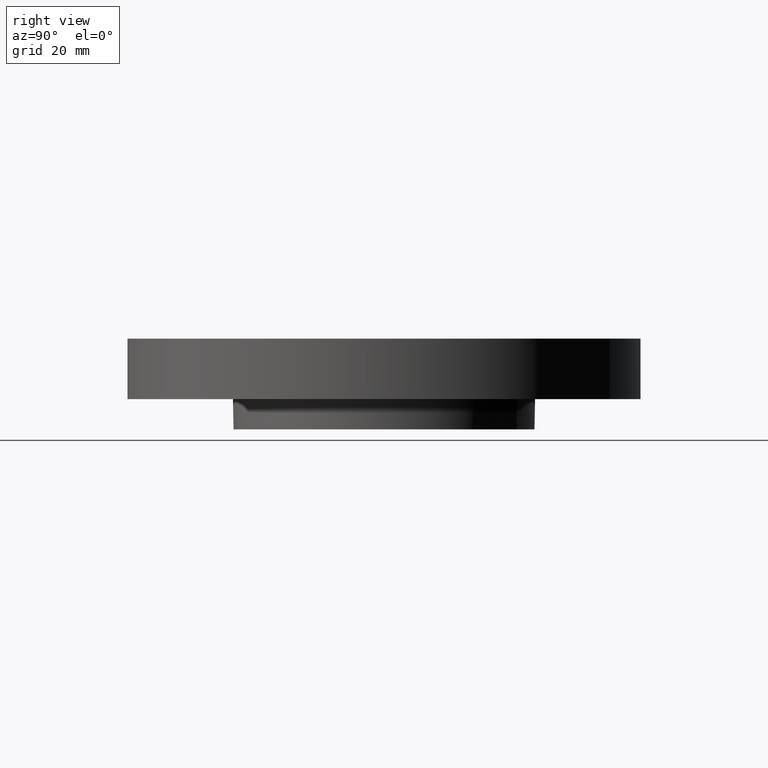
[diagram: clean part render]
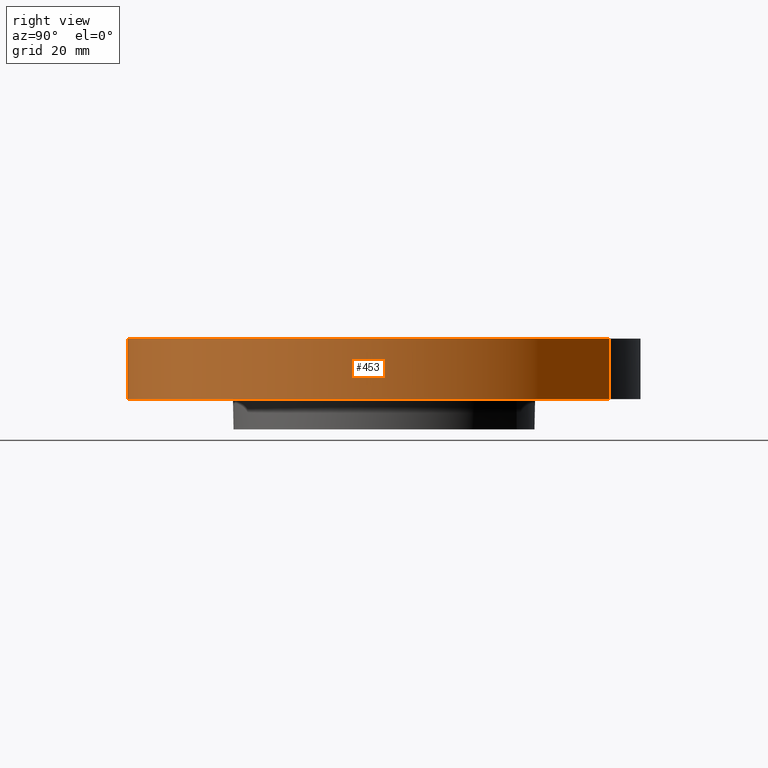
[diagram: same view with one face highlighted and labeled with its STEP entity id]
A machine part, right view. The second image highlights one B-rep face of the part: STEP entity #453.
In plain terms, the highlighted cylindrical surface (partial cylindrical patch) has radius 53.975 mm, axis along (0, 0, -1).
Its self-contained STEP definition (entity closure, byte-faithful):
#307=AXIS2_PLACEMENT_3D('Circle Axis2P3D',#305,#306,$) ;
#426=AXIS2_PLACEMENT_3D('Cylinder Axis2P3D',#423,#424,#425) ;
#437=AXIS2_PLACEMENT_3D('Circle Axis2P3D',#435,#436,$) ;
#300=CARTESIAN_POINT('Vertex',(-1.01877926954,-1.86486294402,1.22386790116E-016)) ;
#302=CARTESIAN_POINT('Vertex',(1.01877926954,1.86486294402,1.22386790116E-016)) ;
#305=CARTESIAN_POINT('Axis2P3D Location',(0.,0.,0.)) ;
#423=CARTESIAN_POINT('Axis2P3D Location',(0.,0.,0.125000000001)) ;
#428=CARTESIAN_POINT('Line Origine',(1.01877926954,1.86486294402,0.250000000001)) ;
#432=CARTESIAN_POINT('Vertex',(1.01877926954,1.86486294402,0.500000000002)) ;
#435=CARTESIAN_POINT('Axis2P3D Location',(0.,0.,0.500000000002)) ;
#439=CARTESIAN_POINT('Vertex',(-1.01877926954,-1.86486294402,0.500000000002)) ;
#442=CARTESIAN_POINT('Line Origine',(-1.01877926954,-1.86486294402,0.250000000001)) ;
#306=DIRECTION('Axis2P3D Direction',(0.,0.,-0.0393700787402)) ;
#424=DIRECTION('Axis2P3D Direction',(0.,0.,-0.0393700787402)) ;
#425=DIRECTION('Axis2P3D XDirection',(-0.0188750212049,-0.0345504945626,0.)) ;
#429=DIRECTION('Vector Direction',(0.,0.,-0.0393700787402)) ;
#436=DIRECTION('Axis2P3D Direction',(0.,0.,-0.0393700787402)) ;
#443=DIRECTION('Vector Direction',(0.,0.,-0.0393700787402)) ;
#430=VECTOR('Line Direction',#429,0.0393700787402) ;
#444=VECTOR('Line Direction',#443,0.0393700787402) ;
#448=ORIENTED_EDGE('',*,*,#309,.F.) ;
#449=ORIENTED_EDGE('',*,*,#434,.T.) ;
#450=ORIENTED_EDGE('',*,*,#441,.T.) ;
#451=ORIENTED_EDGE('',*,*,#446,.F.) ;
#453=ADVANCED_FACE('PartBody',(#452),#427,.T.) ;
#308=CIRCLE('generated circle',#307,2.12500000001) ;
#438=CIRCLE('generated circle',#437,2.12500000001) ;
#427=CYLINDRICAL_SURFACE('generated cylinder',#426,2.12500000001) ;
#309=EDGE_CURVE('',#303,#301,#308,.T.) ;
#434=EDGE_CURVE('',#303,#433,#431,.F.) ;
#441=EDGE_CURVE('',#433,#440,#438,.T.) ;
#446=EDGE_CURVE('',#301,#440,#445,.F.) ;
#447=EDGE_LOOP('',(#448,#449,#450,#451)) ;
#452=FACE_OUTER_BOUND('',#447,.T.) ;
#431=LINE('Line',#428,#430) ;
#445=LINE('Line',#442,#444) ;
#301=VERTEX_POINT('',#300) ;
#303=VERTEX_POINT('',#302) ;
#433=VERTEX_POINT('',#432) ;
#440=VERTEX_POINT('',#439) ;